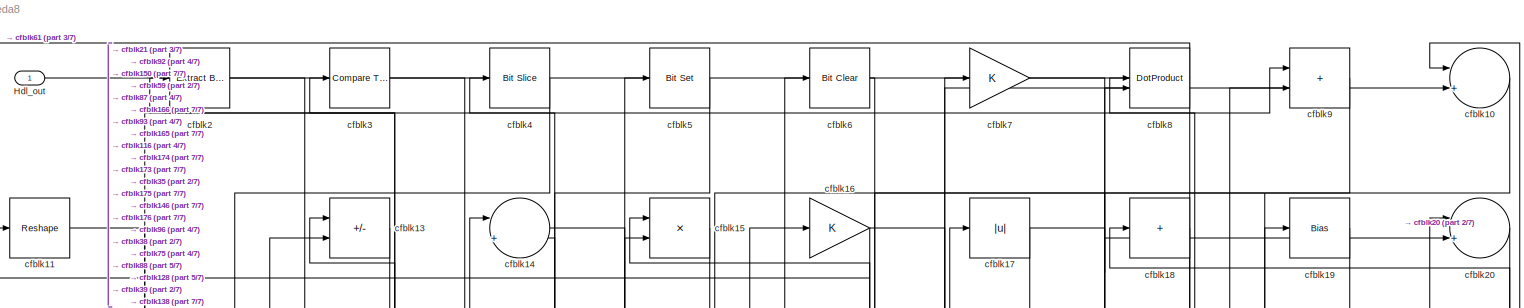
[diagram: root canvas - part 1/7, full width, top band]
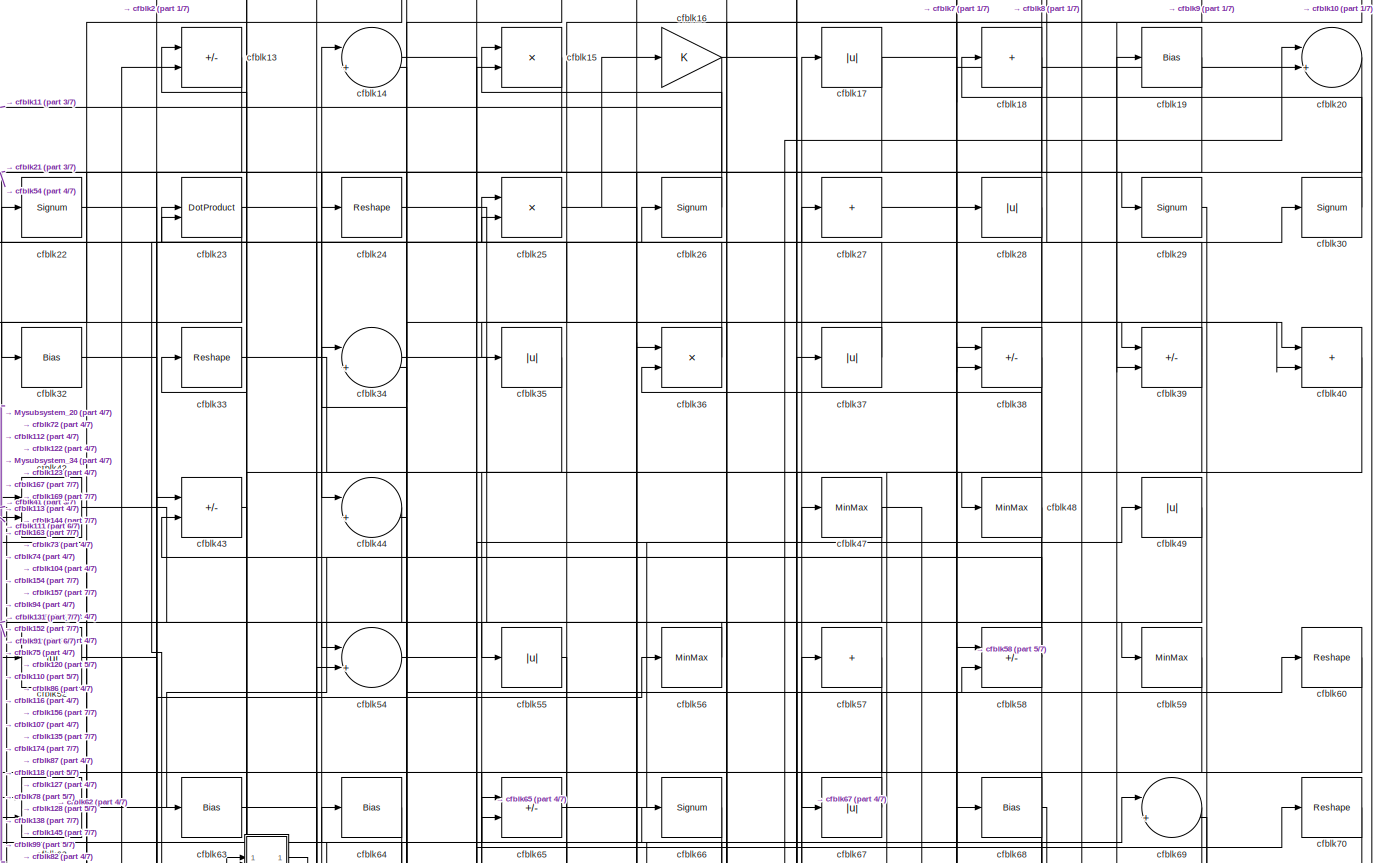
[diagram: root canvas - part 2/7, full width, top band]
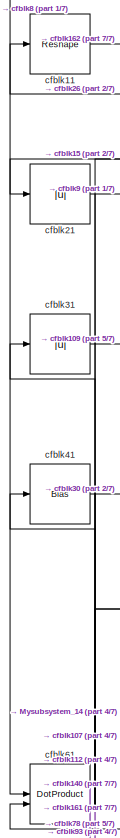
[diagram: root canvas - part 3/7, top left region]
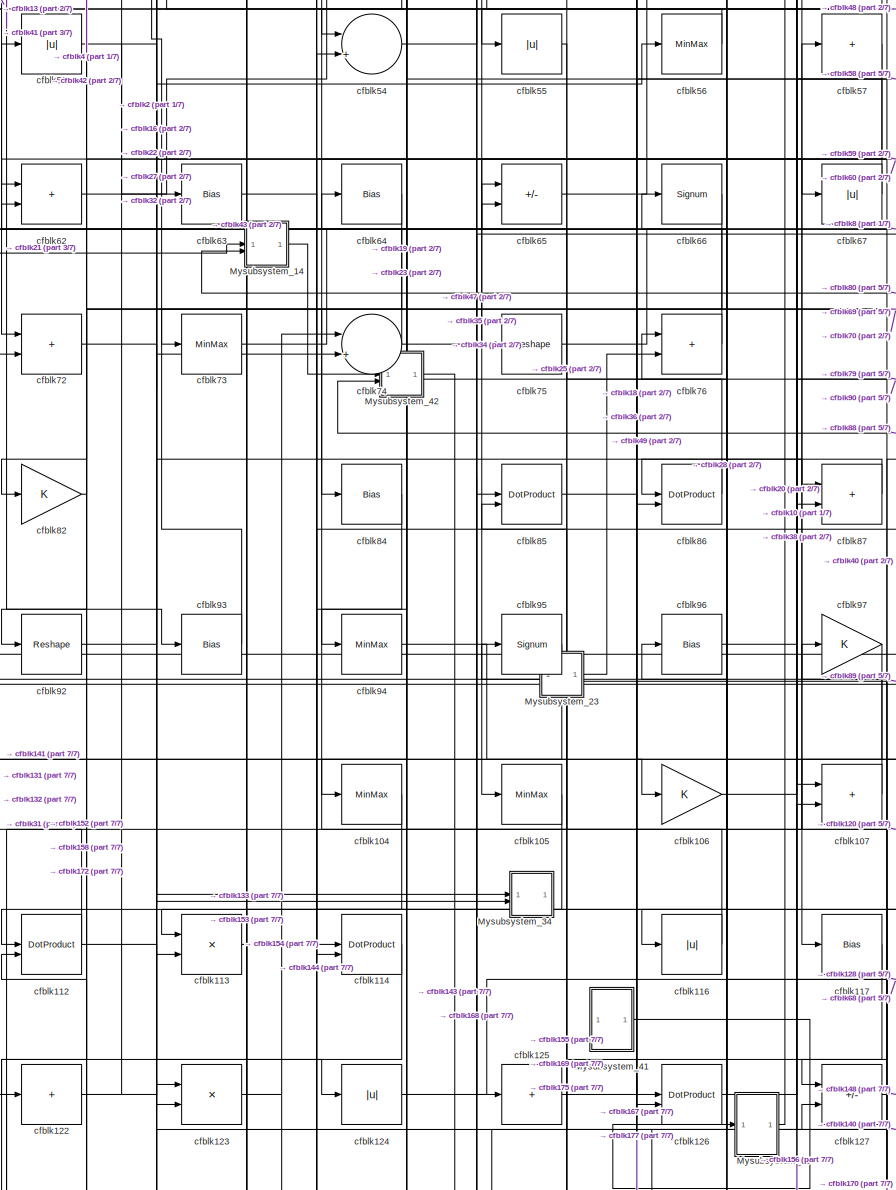
[diagram: root canvas - part 4/7, central region]
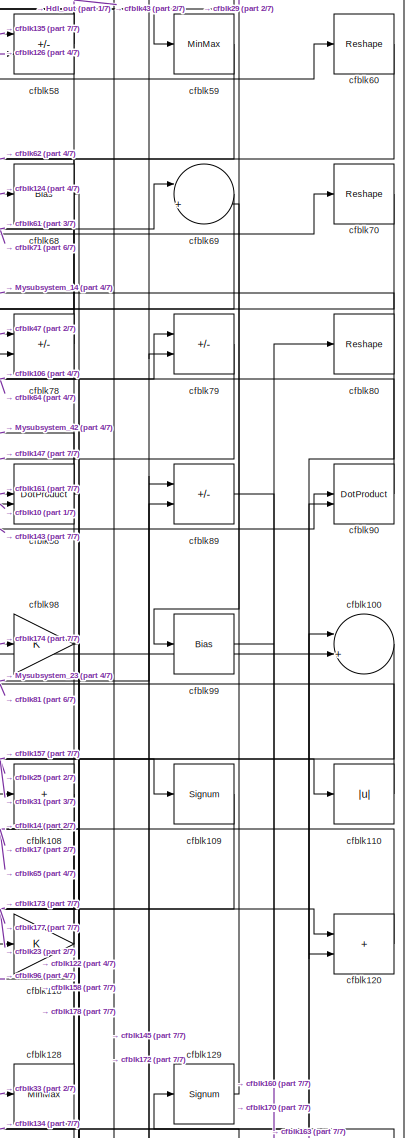
[diagram: root canvas - part 5/7, middle right region]
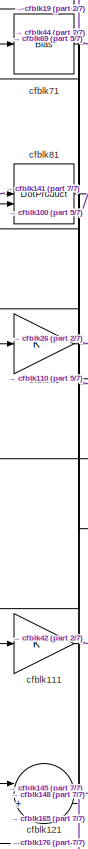
[diagram: root canvas - part 6/7, middle left region]
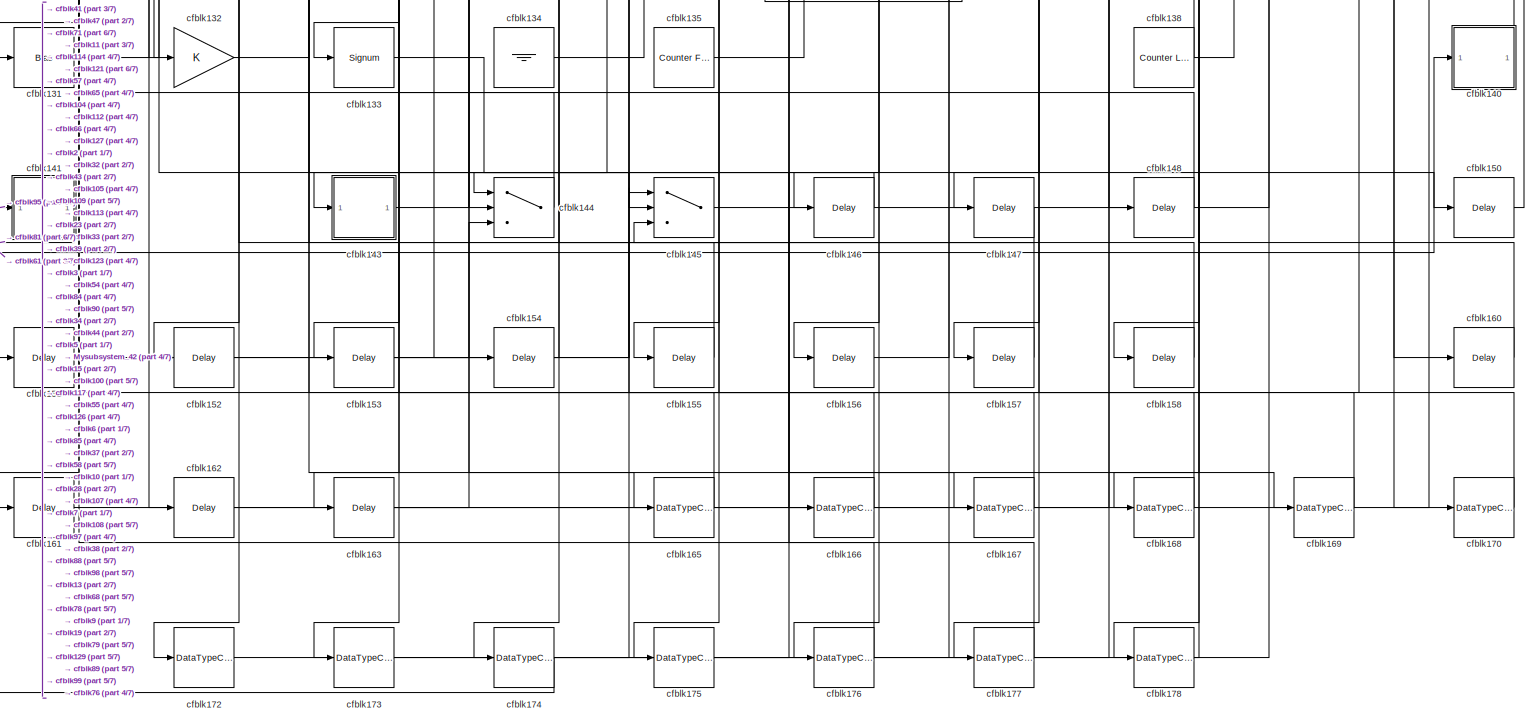
[diagram: root canvas - part 7/7, full width, bottom band]
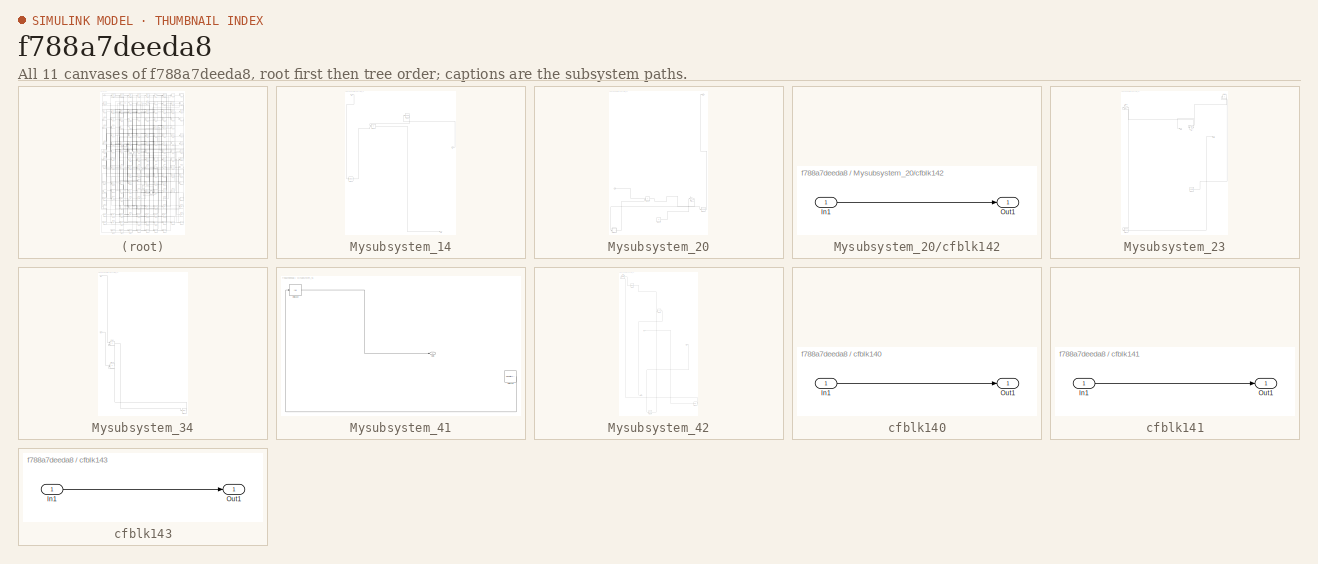
[diagram: thumbnail index - all 11 canvases of the model, root first then tree order]
MODEL slx_f788a7deeda8
KIND model
CONFIG AbsTol = auto
CONFIG EnableMultiTasking = off
CONFIG FixedStep = auto
CONFIG MaxStep = auto
CONFIG MinStep = auto
CONFIG RelTol = 1e-3
CONFIG SampleTimeConstraint = Unconstrained
CONFIG SolverName = VariableStepAuto
CONFIG StartTime = 0.0
CONFIG StopTime = 10.0
BLOCK [Outport] Hdl_out
  OutDataTypeStr = uint8
BLOCK [SubSystem] Mysubsystem_14
  RTWFcnName = Mysubsystem_14
  RTWFcnNameOpts = User specified
  RTWFileNameOpts = Use function name
  RTWSystemCode = Reusable function
  TreatAsAtomicUnit = on
BLOCK [Inport] Mysubsystem_14/In1
BLOCK [Inport] Mysubsystem_14/In2
  Port = 2
BLOCK [Outport] Mysubsystem_14/Out1
BLOCK [Signum] Mysubsystem_14/cfblk101
BLOCK [Reshape] Mysubsystem_14/cfblk46
BLOCK [Product] Mysubsystem_14/cfblk53
  Inputs = */
  RndMeth = Zero
  SaturateOnIntegerOverflow = on
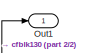
[diagram: Mysubsystem_20 - part 1/2, top right region]
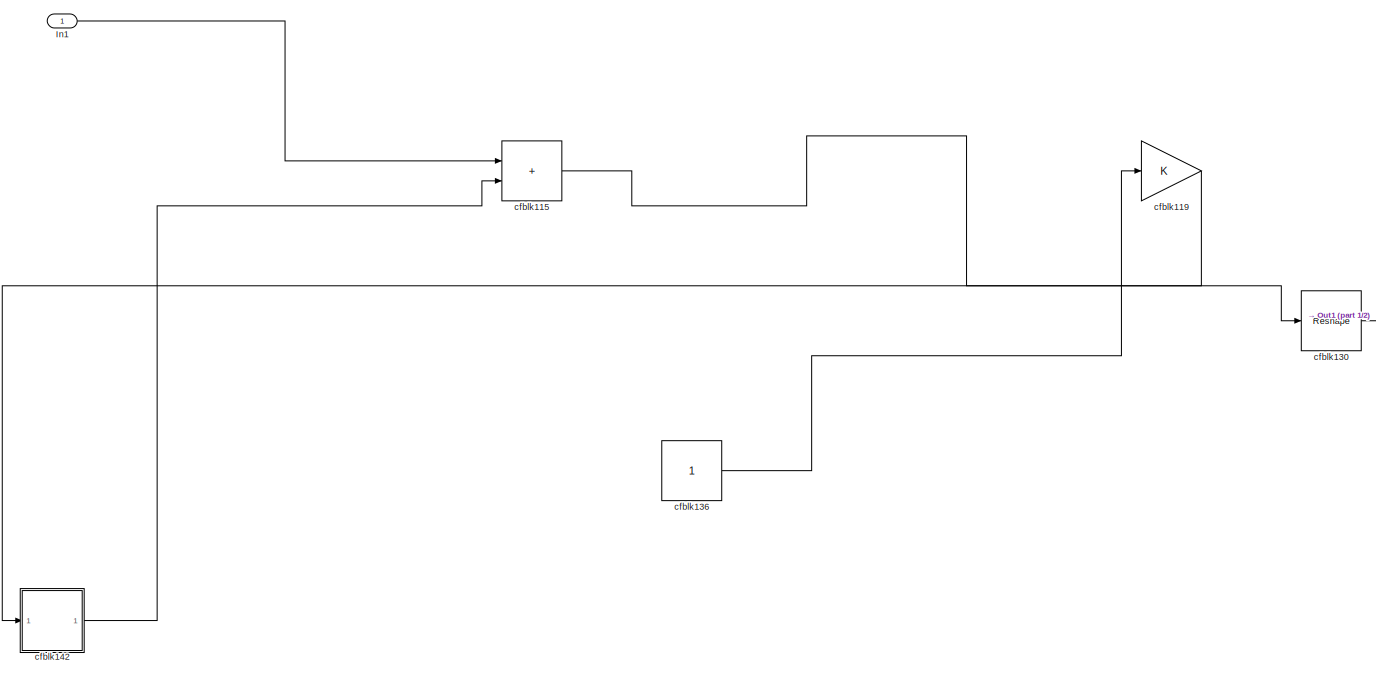
[diagram: Mysubsystem_20 - part 2/2, full width, bottom band]
BLOCK [SubSystem] Mysubsystem_20
  RTWFcnName = Mysubsystem_20
  RTWFcnNameOpts = User specified
  RTWFileNameOpts = Use function name
  RTWSystemCode = Reusable function
  TreatAsAtomicUnit = on
BLOCK [Inport] Mysubsystem_20/In1
BLOCK [Outport] Mysubsystem_20/Out1
BLOCK [Sum] Mysubsystem_20/cfblk115
  IconShape = rectangular
BLOCK [Gain] Mysubsystem_20/cfblk119
BLOCK [Reshape] Mysubsystem_20/cfblk130
BLOCK [Constant] Mysubsystem_20/cfblk136
  SampleTime = -1
BLOCK [SubSystem] Mysubsystem_20/cfblk142
  LibrarySourceBlock = hdlsllib/Ports &\nSubsystems/Subsystem
BLOCK [Inport] Mysubsystem_20/cfblk142/In1
BLOCK [Outport] Mysubsystem_20/cfblk142/Out1
BLOCK [SubSystem] Mysubsystem_23
  RTWFcnName = Mysubsystem_23
  RTWFcnNameOpts = User specified
  RTWFileNameOpts = Use function name
  RTWSystemCode = Reusable function
  TreatAsAtomicUnit = on
BLOCK [Outport] Mysubsystem_23/Out1
BLOCK [Outport] Mysubsystem_23/Out2
  Port = 2
BLOCK [Reference] Mysubsystem_23/cfblk137  REF=hdlsllib/Sources/Counter
Limited
  SourceBlock = hdlsllib/Sources/Counter\nLimited
  SourceType = Counter Limited
BLOCK [DataTypeConversion] Mysubsystem_23/cfblk171
  OutDataTypeStr = uint8
  RndMeth = Floor
  SaturateOnIntegerOverflow = off
BLOCK [Sum] Mysubsystem_23/cfblk50
  IconShape = rectangular
  Inputs = +
BLOCK [Gain] Mysubsystem_23/cfblk51
BLOCK [Gain] Mysubsystem_23/cfblk77
BLOCK [SubSystem] Mysubsystem_34
  RTWFcnName = Mysubsystem_34
  RTWFcnNameOpts = User specified
  RTWFileNameOpts = Use function name
  RTWSystemCode = Reusable function
  TreatAsAtomicUnit = on
BLOCK [Inport] Mysubsystem_34/In1
BLOCK [Inport] Mysubsystem_34/In2
  Port = 2
BLOCK [Product] Mysubsystem_34/cfblk103
  Inputs = */
  RndMeth = Zero
  SaturateOnIntegerOverflow = on
BLOCK [Delay] Mysubsystem_34/cfblk149
  InputPortMap = u0
  SampleTime = 1
BLOCK [Product] Mysubsystem_34/cfblk83
  Inputs = */
  RndMeth = Zero
  SaturateOnIntegerOverflow = on
BLOCK [SubSystem] Mysubsystem_41
  RTWFcnName = Mysubsystem_41
  RTWFcnNameOpts = User specified
  RTWFileNameOpts = Use function name
  RTWSystemCode = Reusable function
  TreatAsAtomicUnit = on
BLOCK [Outport] Mysubsystem_41/Out1
BLOCK [Abs] Mysubsystem_41/cfblk102
  SaturateOnIntegerOverflow = off
BLOCK [Reference] Mysubsystem_41/cfblk139  REF=hdlsllib/Sources/Counter
Limited
  SourceBlock = hdlsllib/Sources/Counter\nLimited
  SourceType = Counter Limited
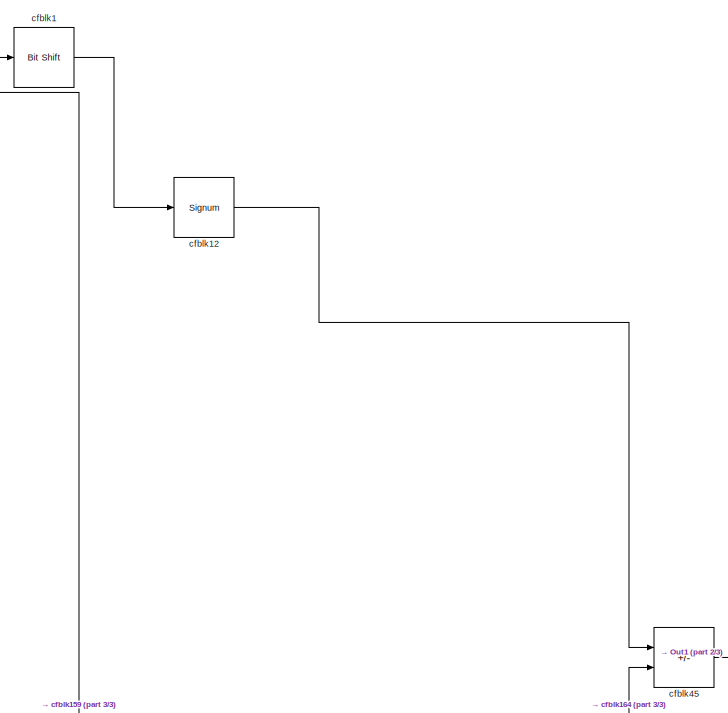
[diagram: Mysubsystem_42 - part 1/3, top left region]
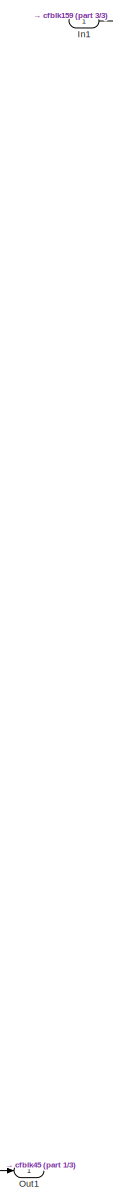
[diagram: Mysubsystem_42 - part 2/3, middle left region]
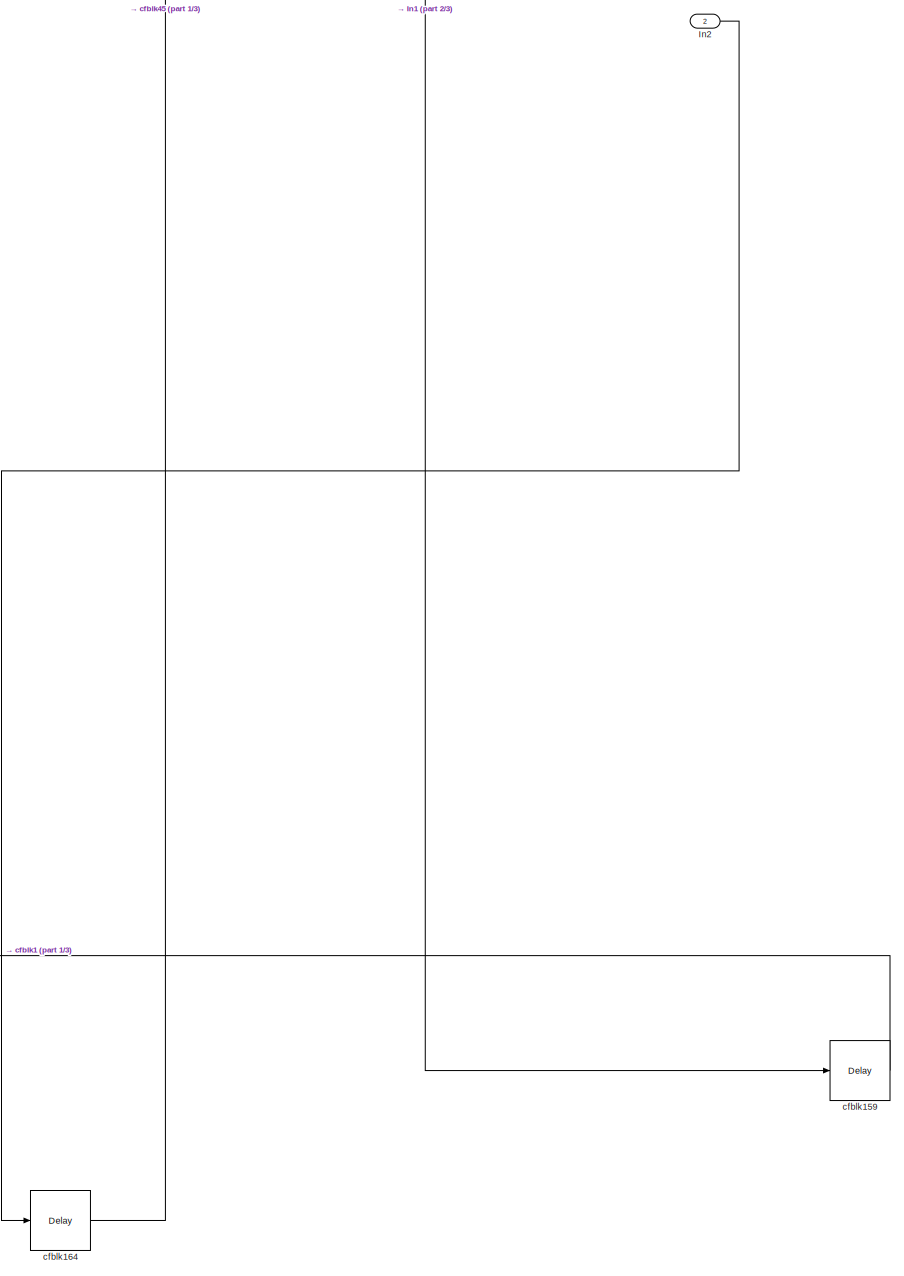
[diagram: Mysubsystem_42 - part 3/3, bottom right region]
BLOCK [SubSystem] Mysubsystem_42
  RTWFcnName = Mysubsystem_42
  RTWFcnNameOpts = User specified
  RTWFileNameOpts = Use function name
  RTWSystemCode = Reusable function
  TreatAsAtomicUnit = on
BLOCK [Inport] Mysubsystem_42/In1
BLOCK [Inport] Mysubsystem_42/In2
  Port = 2
BLOCK [Outport] Mysubsystem_42/Out1
BLOCK [Reference] Mysubsystem_42/cfblk1  REF=hdlsllib/Logic and Bit
Operations/Bit Shift
  SourceBlock = hdlsllib/Logic and Bit\nOperations/Bit Shift
  SourceType = Bit Shift
BLOCK [Signum] Mysubsystem_42/cfblk12
BLOCK [Delay] Mysubsystem_42/cfblk159
  InputPortMap = u0
  SampleTime = 1
BLOCK [Delay] Mysubsystem_42/cfblk164
  InputPortMap = u0
  SampleTime = 1
BLOCK [Sum] Mysubsystem_42/cfblk45
  IconShape = rectangular
  Inputs = +-
BLOCK [Sum] cfblk10
  Inputs = |++
  OutDataTypeStr = uint8
BLOCK [Sum] cfblk100
  Inputs = |++
  OutDataTypeStr = uint8
BLOCK [MinMax] cfblk104
  OutDataTypeStr = uint8
BLOCK [MinMax] cfblk105
  OutDataTypeStr = uint8
BLOCK [Gain] cfblk106
  OutDataTypeStr = uint8
BLOCK [Sum] cfblk107
  IconShape = rectangular
  OutDataTypeStr = uint8
BLOCK [Sum] cfblk108
  IconShape = rectangular
  Inputs = +
  OutDataTypeStr = uint8
BLOCK [Signum] cfblk109
BLOCK [Reshape] cfblk11
BLOCK [Abs] cfblk110
  OutDataTypeStr = uint8
  SaturateOnIntegerOverflow = off
BLOCK [Gain] cfblk111
  OutDataTypeStr = uint8
BLOCK [DotProduct] cfblk112
  OutDataTypeStr = uint8
BLOCK [Product] cfblk113
  Inputs = */
  OutDataTypeStr = uint8
  RndMeth = Zero
  SaturateOnIntegerOverflow = on
BLOCK [DotProduct] cfblk114
  OutDataTypeStr = uint8
BLOCK [Abs] cfblk116
  OutDataTypeStr = uint8
  SaturateOnIntegerOverflow = off
BLOCK [Bias] cfblk117
  Bias = 0.0
  SaturateOnIntegerOverflow = off
BLOCK [Gain] cfblk118
  OutDataTypeStr = uint8
BLOCK [Sum] cfblk120
  IconShape = rectangular
  OutDataTypeStr = uint8
BLOCK [Sum] cfblk121
  Inputs = |++
  OutDataTypeStr = uint8
BLOCK [Sum] cfblk122
  IconShape = rectangular
  Inputs = +
  OutDataTypeStr = uint8
BLOCK [Product] cfblk123
  Inputs = */
  OutDataTypeStr = uint8
  RndMeth = Zero
  SaturateOnIntegerOverflow = on
BLOCK [Abs] cfblk124
  OutDataTypeStr = uint8
  SaturateOnIntegerOverflow = off
BLOCK [Sum] cfblk125
  IconShape = rectangular
  Inputs = +
  OutDataTypeStr = uint8
BLOCK [DotProduct] cfblk126
  OutDataTypeStr = uint8
BLOCK [Sum] cfblk127
  IconShape = rectangular
  Inputs = +-
  OutDataTypeStr = uint8
BLOCK [MinMax] cfblk128
  OutDataTypeStr = uint8
BLOCK [Signum] cfblk129
BLOCK [Sum] cfblk13
  IconShape = rectangular
  Inputs = +-
  OutDataTypeStr = uint8
BLOCK [Bias] cfblk131
  Bias = 0.0
  SaturateOnIntegerOverflow = off
BLOCK [Gain] cfblk132
  OutDataTypeStr = uint8
BLOCK [Signum] cfblk133
BLOCK [Ground] cfblk134
BLOCK [Reference] cfblk135  REF=hdlsllib/Sources/Counter
Free-Running
  SourceBlock = hdlsllib/Sources/Counter\nFree-Running
  SourceType = Counter Free-Running
BLOCK [Reference] cfblk138  REF=hdlsllib/Sources/Counter
Limited
  SourceBlock = hdlsllib/Sources/Counter\nLimited
  SourceType = Counter Limited
BLOCK [Sum] cfblk14
  Inputs = |++
  OutDataTypeStr = uint8
BLOCK [SubSystem] cfblk140
  LibrarySourceBlock = hdlsllib/Ports &\nSubsystems/Subsystem
BLOCK [Inport] cfblk140/In1
BLOCK [Outport] cfblk140/Out1
BLOCK [SubSystem] cfblk141
  LibrarySourceBlock = hdlsllib/Ports &\nSubsystems/Subsystem
BLOCK [Inport] cfblk141/In1
BLOCK [Outport] cfblk141/Out1
BLOCK [SubSystem] cfblk143
  LibrarySourceBlock = hdlsllib/Ports &\nSubsystems/Subsystem
BLOCK [Inport] cfblk143/In1
BLOCK [Outport] cfblk143/Out1
BLOCK [Switch] cfblk144
  InputSameDT = off
  OutDataTypeStr = uint8
  SaturateOnIntegerOverflow = off
BLOCK [Switch] cfblk145
  InputSameDT = off
  OutDataTypeStr = uint8
  SaturateOnIntegerOverflow = off
BLOCK [Delay] cfblk146
  InputPortMap = u0
  SampleTime = 1
BLOCK [Delay] cfblk147
  InputPortMap = u0
  SampleTime = 1
BLOCK [Delay] cfblk148
  InputPortMap = u0
  SampleTime = 1
BLOCK [Product] cfblk15
  Inputs = */
  OutDataTypeStr = uint8
  RndMeth = Zero
  SaturateOnIntegerOverflow = on
BLOCK [Delay] cfblk150
  InputPortMap = u0
  SampleTime = 1
BLOCK [Delay] cfblk151
  InputPortMap = u0
  SampleTime = 1
BLOCK [Delay] cfblk152
  InputPortMap = u0
  SampleTime = 1
BLOCK [Delay] cfblk153
  InputPortMap = u0
  SampleTime = 1
BLOCK [Delay] cfblk154
  InputPortMap = u0
  SampleTime = 1
BLOCK [Delay] cfblk155
  InputPortMap = u0
  SampleTime = 1
BLOCK [Delay] cfblk156
  InputPortMap = u0
  SampleTime = 1
BLOCK [Delay] cfblk157
  InputPortMap = u0
  SampleTime = 1
BLOCK [Delay] cfblk158
  InputPortMap = u0
  SampleTime = 1
BLOCK [Gain] cfblk16
  OutDataTypeStr = uint8
BLOCK [Delay] cfblk160
  InputPortMap = u0
  SampleTime = 1
BLOCK [Delay] cfblk161
  InputPortMap = u0
  SampleTime = 1
BLOCK [Delay] cfblk162
  InputPortMap = u0
  SampleTime = 1
BLOCK [Delay] cfblk163
  InputPortMap = u0
  SampleTime = 1
BLOCK [DataTypeConversion] cfblk165
  OutDataTypeStr = uint8
  RndMeth = Floor
  SaturateOnIntegerOverflow = off
BLOCK [DataTypeConversion] cfblk166
  OutDataTypeStr = uint8
  RndMeth = Floor
  SaturateOnIntegerOverflow = off
BLOCK [DataTypeConversion] cfblk167
  OutDataTypeStr = uint8
  RndMeth = Floor
  SaturateOnIntegerOverflow = off
BLOCK [DataTypeConversion] cfblk168
  OutDataTypeStr = uint8
  RndMeth = Floor
  SaturateOnIntegerOverflow = off
BLOCK [DataTypeConversion] cfblk169
  OutDataTypeStr = uint8
  RndMeth = Floor
  SaturateOnIntegerOverflow = off
BLOCK [Abs] cfblk17
  OutDataTypeStr = uint8
  SaturateOnIntegerOverflow = off
BLOCK [DataTypeConversion] cfblk170
  OutDataTypeStr = uint8
  RndMeth = Floor
  SaturateOnIntegerOverflow = off
BLOCK [DataTypeConversion] cfblk172
  OutDataTypeStr = uint8
  RndMeth = Floor
  SaturateOnIntegerOverflow = off
BLOCK [DataTypeConversion] cfblk173
  OutDataTypeStr = uint8
  RndMeth = Floor
  SaturateOnIntegerOverflow = off
BLOCK [DataTypeConversion] cfblk174
  OutDataTypeStr = uint8
  RndMeth = Floor
  SaturateOnIntegerOverflow = off
BLOCK [DataTypeConversion] cfblk175
  OutDataTypeStr = uint8
  RndMeth = Floor
  SaturateOnIntegerOverflow = off
BLOCK [DataTypeConversion] cfblk176
  OutDataTypeStr = uint8
  RndMeth = Floor
  SaturateOnIntegerOverflow = off
BLOCK [DataTypeConversion] cfblk177
  OutDataTypeStr = uint8
  RndMeth = Floor
  SaturateOnIntegerOverflow = off
BLOCK [DataTypeConversion] cfblk178
  OutDataTypeStr = uint8
  RndMeth = Floor
  SaturateOnIntegerOverflow = off
BLOCK [Sum] cfblk18
  IconShape = rectangular
  Inputs = +
  OutDataTypeStr = uint8
BLOCK [Bias] cfblk19
  Bias = 0.0
  SaturateOnIntegerOverflow = off
BLOCK [Reference] cfblk2  REF=simulink/Logic and Bit
Operations/Extract Bits
  LibrarySourceBlock = hdlsllib/Logic and Bit\nOperations/Extract Bits
  SourceBlock = simulink/Logic and Bit\nOperations/Extract Bits
  SourceType = Extract Bits
BLOCK [Sum] cfblk20
  Inputs = |++
  OutDataTypeStr = uint8
BLOCK [Abs] cfblk21
  OutDataTypeStr = uint8
  SaturateOnIntegerOverflow = off
BLOCK [Signum] cfblk22
BLOCK [DotProduct] cfblk23
  OutDataTypeStr = uint8
BLOCK [Reshape] cfblk24
BLOCK [Product] cfblk25
  Inputs = */
  OutDataTypeStr = uint8
  RndMeth = Zero
  SaturateOnIntegerOverflow = on
BLOCK [Signum] cfblk26
BLOCK [Sum] cfblk27
  IconShape = rectangular
  Inputs = +
  OutDataTypeStr = uint8
BLOCK [Abs] cfblk28
  OutDataTypeStr = uint8
  SaturateOnIntegerOverflow = off
BLOCK [Signum] cfblk29
BLOCK [Reference] cfblk3  REF=hdlsllib/Logic and Bit
Operations/Compare
To Constant
  SourceBlock = hdlsllib/Logic and Bit\nOperations/Compare\nTo Constant
  SourceType = Compare To Constant
BLOCK [Signum] cfblk30
BLOCK [Abs] cfblk31
  OutDataTypeStr = uint8
  SaturateOnIntegerOverflow = off
BLOCK [Bias] cfblk32
  Bias = 0.0
  SaturateOnIntegerOverflow = off
BLOCK [Reshape] cfblk33
BLOCK [Sum] cfblk34
  Inputs = |++
  OutDataTypeStr = uint8
BLOCK [Abs] cfblk35
  OutDataTypeStr = uint8
  SaturateOnIntegerOverflow = off
BLOCK [Product] cfblk36
  Inputs = */
  OutDataTypeStr = uint8
  RndMeth = Zero
  SaturateOnIntegerOverflow = on
BLOCK [Abs] cfblk37
  OutDataTypeStr = uint8
  SaturateOnIntegerOverflow = off
BLOCK [Sum] cfblk38
  IconShape = rectangular
  Inputs = +-
  OutDataTypeStr = uint8
BLOCK [Sum] cfblk39
  IconShape = rectangular
  Inputs = +-
  OutDataTypeStr = uint8
BLOCK [Reference] cfblk4  REF=hdlsllib/Logic and Bit
Operations/Bit Slice
  SourceBlock = hdlsllib/Logic and Bit\nOperations/Bit Slice
  SourceType = Bit Slice
BLOCK [Sum] cfblk40
  IconShape = rectangular
  OutDataTypeStr = uint8
BLOCK [Bias] cfblk41
  Bias = 0.0
  SaturateOnIntegerOverflow = off
BLOCK [Sum] cfblk42
  IconShape = rectangular
  Inputs = +-
  OutDataTypeStr = uint8
BLOCK [Sum] cfblk43
  IconShape = rectangular
  Inputs = +-
  OutDataTypeStr = uint8
BLOCK [Sum] cfblk44
  Inputs = |++
  OutDataTypeStr = uint8
BLOCK [MinMax] cfblk47
  OutDataTypeStr = uint8
BLOCK [MinMax] cfblk48
  OutDataTypeStr = uint8
BLOCK [Abs] cfblk49
  OutDataTypeStr = uint8
  SaturateOnIntegerOverflow = off
BLOCK [Reference] cfblk5  REF=simulink/Logic and Bit
Operations/Bit Set
  LibrarySourceBlock = hdlsllib/Logic and Bit\nOperations/Bit Set
  SourceBlock = simulink/Logic and Bit\nOperations/Bit Set
  SourceType = Bit Set
BLOCK [Abs] cfblk52
  OutDataTypeStr = uint8
  SaturateOnIntegerOverflow = off
BLOCK [Sum] cfblk54
  Inputs = |++
  OutDataTypeStr = uint8
BLOCK [Abs] cfblk55
  OutDataTypeStr = uint8
  SaturateOnIntegerOverflow = off
BLOCK [MinMax] cfblk56
  OutDataTypeStr = uint8
BLOCK [Sum] cfblk57
  IconShape = rectangular
  Inputs = +
  OutDataTypeStr = uint8
BLOCK [Sum] cfblk58
  IconShape = rectangular
  Inputs = +-
  OutDataTypeStr = uint8
BLOCK [MinMax] cfblk59
  OutDataTypeStr = uint8
BLOCK [Reference] cfblk6  REF=simulink/Logic and Bit
Operations/Bit Clear
  LibrarySourceBlock = hdlsllib/Logic and Bit\nOperations/Bit Clear
  SourceBlock = simulink/Logic and Bit\nOperations/Bit Clear
  SourceType = Bit Clear
BLOCK [Reshape] cfblk60
BLOCK [DotProduct] cfblk61
  OutDataTypeStr = uint8
BLOCK [Sum] cfblk62
  IconShape = rectangular
  OutDataTypeStr = uint8
BLOCK [Bias] cfblk63
  Bias = 0.0
  SaturateOnIntegerOverflow = off
BLOCK [Bias] cfblk64
  Bias = 0.0
  SaturateOnIntegerOverflow = off
BLOCK [Sum] cfblk65
  IconShape = rectangular
  Inputs = +-
  OutDataTypeStr = uint8
BLOCK [Signum] cfblk66
BLOCK [Abs] cfblk67
  OutDataTypeStr = uint8
  SaturateOnIntegerOverflow = off
BLOCK [Bias] cfblk68
  Bias = 0.0
  SaturateOnIntegerOverflow = off
BLOCK [Sum] cfblk69
  Inputs = |++
  OutDataTypeStr = uint8
BLOCK [Gain] cfblk7
  OutDataTypeStr = uint8
BLOCK [Reshape] cfblk70
BLOCK [Bias] cfblk71
  Bias = 0.0
  SaturateOnIntegerOverflow = off
BLOCK [Sum] cfblk72
  IconShape = rectangular
  OutDataTypeStr = uint8
BLOCK [MinMax] cfblk73
  OutDataTypeStr = uint8
BLOCK [Sum] cfblk74
  Inputs = |++
  OutDataTypeStr = uint8
BLOCK [Reshape] cfblk75
BLOCK [Sum] cfblk76
  IconShape = rectangular
  OutDataTypeStr = uint8
BLOCK [Sum] cfblk78
  IconShape = rectangular
  Inputs = +-
  OutDataTypeStr = uint8
BLOCK [Sum] cfblk79
  IconShape = rectangular
  Inputs = +-
  OutDataTypeStr = uint8
BLOCK [DotProduct] cfblk8
  OutDataTypeStr = uint8
BLOCK [Reshape] cfblk80
BLOCK [DotProduct] cfblk81
  OutDataTypeStr = uint8
BLOCK [Gain] cfblk82
  OutDataTypeStr = uint8
BLOCK [Bias] cfblk84
  Bias = 0.0
  SaturateOnIntegerOverflow = off
BLOCK [DotProduct] cfblk85
  OutDataTypeStr = uint8
BLOCK [DotProduct] cfblk86
  OutDataTypeStr = uint8
BLOCK [Sum] cfblk87
  IconShape = rectangular
  OutDataTypeStr = uint8
BLOCK [DotProduct] cfblk88
  OutDataTypeStr = uint8
BLOCK [Sum] cfblk89
  IconShape = rectangular
  Inputs = +-
  OutDataTypeStr = uint8
BLOCK [Sum] cfblk9
  IconShape = rectangular
  OutDataTypeStr = uint8
BLOCK [DotProduct] cfblk90
  OutDataTypeStr = uint8
BLOCK [Gain] cfblk91
  OutDataTypeStr = uint8
BLOCK [Reshape] cfblk92
BLOCK [Bias] cfblk93
  Bias = 0.0
  SaturateOnIntegerOverflow = off
BLOCK [MinMax] cfblk94
  OutDataTypeStr = uint8
BLOCK [Signum] cfblk95
BLOCK [Bias] cfblk96
  Bias = 0.0
  SaturateOnIntegerOverflow = off
BLOCK [Gain] cfblk97
  OutDataTypeStr = uint8
BLOCK [Gain] cfblk98
  OutDataTypeStr = uint8
BLOCK [Bias] cfblk99
  Bias = 0.0
  SaturateOnIntegerOverflow = off
LINE Mysubsystem_14/In1:1 -> Mysubsystem_14/cfblk101:1
LINE Mysubsystem_14/In2:1 -> Mysubsystem_14/cfblk46:1
LINE Mysubsystem_14/cfblk101:1 -> Mysubsystem_14/cfblk53:2
LINE Mysubsystem_14/cfblk46:1 -> Mysubsystem_14/cfblk53:1
LINE Mysubsystem_14/cfblk53:1 -> Mysubsystem_14/Out1:1
LINE Mysubsystem_14:1 -> Mysubsystem_42:1
LINE Mysubsystem_20/In1:1 -> Mysubsystem_20/cfblk115:1
LINE Mysubsystem_20/cfblk115:1 -> Mysubsystem_20/cfblk130:1
LINE Mysubsystem_20/cfblk119:1 -> Mysubsystem_20/cfblk142:1
LINE Mysubsystem_20/cfblk130:1 -> Mysubsystem_20/Out1:1
LINE Mysubsystem_20/cfblk136:1 -> Mysubsystem_20/cfblk119:1
LINE Mysubsystem_20/cfblk142/In1:1 -> Mysubsystem_20/cfblk142/Out1:1
LINE Mysubsystem_20/cfblk142:1 -> Mysubsystem_20/cfblk115:2
LINE Mysubsystem_20:1 -> cfblk20:1
LINE Mysubsystem_23/cfblk137:1 -> Mysubsystem_23/cfblk50:1
LINE Mysubsystem_23/cfblk171:1 -> Mysubsystem_23/Out2:1
NET Mysubsystem_23/cfblk50:1 -> Mysubsystem_23/Out1:1, Mysubsystem_23/cfblk77:1
LINE Mysubsystem_23/cfblk51:1 -> Mysubsystem_23/cfblk171:1
LINE Mysubsystem_23/cfblk77:1 -> Mysubsystem_23/cfblk51:1
LINE Mysubsystem_23:1 -> cfblk76:2
LINE Mysubsystem_23:2 -> cfblk89:1
LINE Mysubsystem_34/In1:1 -> Mysubsystem_34/cfblk83:1
LINE Mysubsystem_34/In2:1 -> Mysubsystem_34/cfblk103:1
LINE Mysubsystem_34/cfblk103:1 -> Mysubsystem_34/cfblk83:2
LINE Mysubsystem_34/cfblk149:1 -> Mysubsystem_34/cfblk103:2
LINE Mysubsystem_34/cfblk83:1 -> Mysubsystem_34/cfblk149:1
LINE Mysubsystem_41/cfblk102:1 -> Mysubsystem_41/Out1:1
LINE Mysubsystem_41/cfblk139:1 -> Mysubsystem_41/cfblk102:1
LINE Mysubsystem_41:1 -> Mysubsystem_20:1
LINE Mysubsystem_42/In1:1 -> Mysubsystem_42/cfblk159:1
LINE Mysubsystem_42/In2:1 -> Mysubsystem_42/cfblk164:1
LINE Mysubsystem_42/cfblk12:1 -> Mysubsystem_42/cfblk45:1
LINE Mysubsystem_42/cfblk159:1 -> Mysubsystem_42/cfblk1:1
LINE Mysubsystem_42/cfblk164:1 -> Mysubsystem_42/cfblk45:2
LINE Mysubsystem_42/cfblk1:1 -> Mysubsystem_42/cfblk12:1
LINE Mysubsystem_42/cfblk45:1 -> Mysubsystem_42/Out1:1
LINE Mysubsystem_42:1 -> cfblk143:1
LINE cfblk100:1 -> cfblk157:1
LINE cfblk104:1 -> cfblk172:1
LINE cfblk105:1 -> cfblk133:1
LINE cfblk106:1 -> cfblk79:1
LINE cfblk107:1 -> cfblk41:1
LINE cfblk108:1 -> cfblk177:1
LINE cfblk109:1 -> cfblk173:1
NET cfblk10:1 -> cfblk146:1, cfblk38:2, cfblk39:2, cfblk88:2
LINE cfblk110:1 -> cfblk81:2
LINE cfblk111:1 -> cfblk42:2
NET cfblk112:1 -> cfblk124:1, cfblk31:1
LINE cfblk113:1 -> cfblk153:1
LINE cfblk114:1 -> cfblk132:1
LINE cfblk116:1 -> cfblk4:1
LINE cfblk117:1 -> cfblk155:1
LINE cfblk118:1 -> cfblk17:1
LINE cfblk11:1 -> cfblk162:1
NET cfblk120:1 -> cfblk14:1, cfblk65:2
LINE cfblk121:1 -> cfblk145:2
NET cfblk122:1 -> cfblk13:2, cfblk27:1
NET cfblk123:1 -> cfblk154:1, cfblk74:1
LINE cfblk124:1 -> cfblk68:1
LINE cfblk125:1 -> cfblk60:1
NET cfblk126:1 -> cfblk58:2, cfblk66:1
LINE cfblk127:1 -> cfblk148:1
NET cfblk128:1 -> Hdl_out:1, cfblk96:1
LINE cfblk129:1 -> cfblk69:2
NET cfblk131:1 -> cfblk57:1, cfblk65:1
LINE cfblk132:1 -> cfblk127:2
LINE cfblk133:1 -> cfblk166:1
LINE cfblk134:1 -> cfblk100:1
NET cfblk135:1 -> cfblk37:1, cfblk58:1
NET cfblk138:1 -> cfblk13:1, cfblk168:1, cfblk9:2
LINE cfblk13:1 -> cfblk72:1
LINE cfblk140/In1:1 -> cfblk140/Out1:1
NET cfblk140:1 -> cfblk76:1, cfblk95:1
LINE cfblk141/In1:1 -> cfblk141/Out1:1
LINE cfblk141:1 -> cfblk81:1
LINE cfblk143/In1:1 -> cfblk143/Out1:1
LINE cfblk143:1 -> cfblk90:1
NET cfblk144:1 -> cfblk23:2, cfblk33:1
NET cfblk145:1 -> cfblk19:1, cfblk79:2
LINE cfblk146:1 -> cfblk144:1
LINE cfblk147:1 -> cfblk145:3
LINE cfblk148:1 -> cfblk121:1
LINE cfblk14:1 -> cfblk40:2
LINE cfblk150:1 -> cfblk10:1
LINE cfblk151:1 -> cfblk145:1
LINE cfblk152:1 -> cfblk15:2
LINE cfblk153:1 -> cfblk54:2
LINE cfblk154:1 -> cfblk34:1
LINE cfblk155:1 -> cfblk123:1
LINE cfblk156:1 -> cfblk107:2
LINE cfblk157:1 -> cfblk44:2
LINE cfblk158:1 -> cfblk112:2
NET cfblk15:1 -> cfblk21:1, cfblk24:1
LINE cfblk160:1 -> cfblk78:2
LINE cfblk161:1 -> cfblk88:1
LINE cfblk162:1 -> cfblk144:3
LINE cfblk163:1 -> cfblk90:2
LINE cfblk165:1 -> cfblk71:1
LINE cfblk166:1 -> cfblk3:1
LINE cfblk167:1 -> cfblk43:1
LINE cfblk168:1 -> cfblk85:1
LINE cfblk169:1 -> cfblk85:2
NET cfblk16:1 -> cfblk123:2, cfblk40:1
NET cfblk170:1 -> cfblk129:1, cfblk97:1
LINE cfblk172:1 -> cfblk89:2
LINE cfblk173:1 -> cfblk5:1
NET cfblk174:1 -> cfblk151:1, cfblk38:1, cfblk7:1, cfblk98:1
LINE cfblk175:1 -> cfblk6:1
LINE cfblk176:1 -> cfblk121:2
LINE cfblk177:1 -> cfblk126:1
LINE cfblk178:1 -> cfblk108:1
NET cfblk17:1 -> cfblk39:1, cfblk44:1
LINE cfblk18:1 -> cfblk86:2
NET cfblk19:1 -> cfblk111:1, cfblk54:1
LINE cfblk20:1 -> cfblk32:1
NET cfblk21:1 -> Mysubsystem_14:1, cfblk9:1
LINE cfblk22:1 -> Mysubsystem_34:1
NET cfblk23:1 -> cfblk120:1, cfblk72:2
LINE cfblk24:1 -> cfblk48:1
NET cfblk25:1 -> cfblk110:1, cfblk16:1
NET cfblk26:1 -> cfblk11:1, cfblk15:1
LINE cfblk27:1 -> cfblk29:1
NET cfblk28:1 -> cfblk104:1, cfblk156:1
LINE cfblk29:1 -> cfblk99:1
NET cfblk2:1 -> cfblk150:1, cfblk59:1, cfblk87:1
LINE cfblk30:1 -> cfblk18:1
LINE cfblk31:1 -> cfblk109:1
NET cfblk32:1 -> cfblk113:2, cfblk169:1
NET cfblk33:1 -> cfblk128:1, cfblk25:2
LINE cfblk34:1 -> cfblk107:1
LINE cfblk35:1 -> cfblk75:1
LINE cfblk36:1 -> cfblk22:1
LINE cfblk37:1 -> cfblk14:2
NET cfblk38:1 -> cfblk36:2, cfblk87:2
NET cfblk39:1 -> cfblk163:1, cfblk8:1
LINE cfblk3:1 -> cfblk165:1
LINE cfblk40:1 -> cfblk127:1
NET cfblk41:1 -> cfblk161:1, cfblk30:1, cfblk93:1
LINE cfblk42:1 -> cfblk125:1
LINE cfblk43:1 -> cfblk113:1
LINE cfblk44:1 -> cfblk91:1
NET cfblk47:1 -> cfblk131:1, cfblk78:1
LINE cfblk48:1 -> cfblk116:1
LINE cfblk49:1 -> cfblk94:1
LINE cfblk4:1 -> cfblk92:1
NET cfblk52:1 -> cfblk63:1, cfblk67:1
LINE cfblk54:1 -> cfblk47:1
LINE cfblk55:1 -> cfblk175:1
LINE cfblk56:1 -> cfblk55:1
LINE cfblk57:1 -> cfblk114:2
LINE cfblk58:1 -> cfblk43:2
LINE cfblk59:1 -> cfblk112:1
LINE cfblk5:1 -> cfblk174:1
LINE cfblk60:1 -> cfblk105:1
LINE cfblk61:1 -> cfblk140:1
LINE cfblk62:1 -> cfblk28:1
LINE cfblk63:1 -> cfblk114:1
NET cfblk64:1 -> cfblk73:1, cfblk84:1
LINE cfblk65:1 -> cfblk49:1
LINE cfblk66:1 -> cfblk152:1
NET cfblk67:1 -> cfblk23:1, cfblk34:2
NET cfblk68:1 -> cfblk122:1, cfblk158:1, cfblk62:1
LINE cfblk69:1 -> cfblk126:2
LINE cfblk6:1 -> cfblk176:1
LINE cfblk70:1 -> cfblk82:1
LINE cfblk71:1 -> cfblk69:1
LINE cfblk72:1 -> Mysubsystem_34:2
LINE cfblk73:1 -> cfblk36:1
NET cfblk74:1 -> cfblk62:2, cfblk70:1
LINE cfblk75:1 -> cfblk8:2
LINE cfblk76:1 -> cfblk52:1
LINE cfblk78:1 -> cfblk61:2
LINE cfblk79:1 -> cfblk147:1
LINE cfblk7:1 -> cfblk20:2
NET cfblk80:1 -> Mysubsystem_14:2, cfblk120:2
LINE cfblk81:1 -> cfblk100:2
LINE cfblk82:1 -> cfblk42:1
LINE cfblk84:1 -> cfblk144:2
LINE cfblk85:1 -> cfblk167:1
LINE cfblk86:1 -> cfblk25:1
LINE cfblk87:1 -> cfblk86:1
NET cfblk88:1 -> Mysubsystem_42:2, cfblk118:1
LINE cfblk89:1 -> cfblk170:1
LINE cfblk8:1 -> cfblk61:1
LINE cfblk90:1 -> cfblk64:1
LINE cfblk91:1 -> cfblk26:1
NET cfblk92:1 -> cfblk56:1, cfblk74:2
LINE cfblk93:1 -> cfblk2:1
LINE cfblk94:1 -> cfblk106:1
LINE cfblk95:1 -> cfblk141:1
LINE cfblk96:1 -> cfblk10:2
LINE cfblk97:1 -> cfblk117:1
LINE cfblk98:1 -> cfblk178:1
NET cfblk99:1 -> cfblk160:1, cfblk80:1
LINE cfblk9:1 -> cfblk35:1
note: NET lines group one-source signal fan-out (src -> all destinations, sorted); 1:1 wires keep LINE
